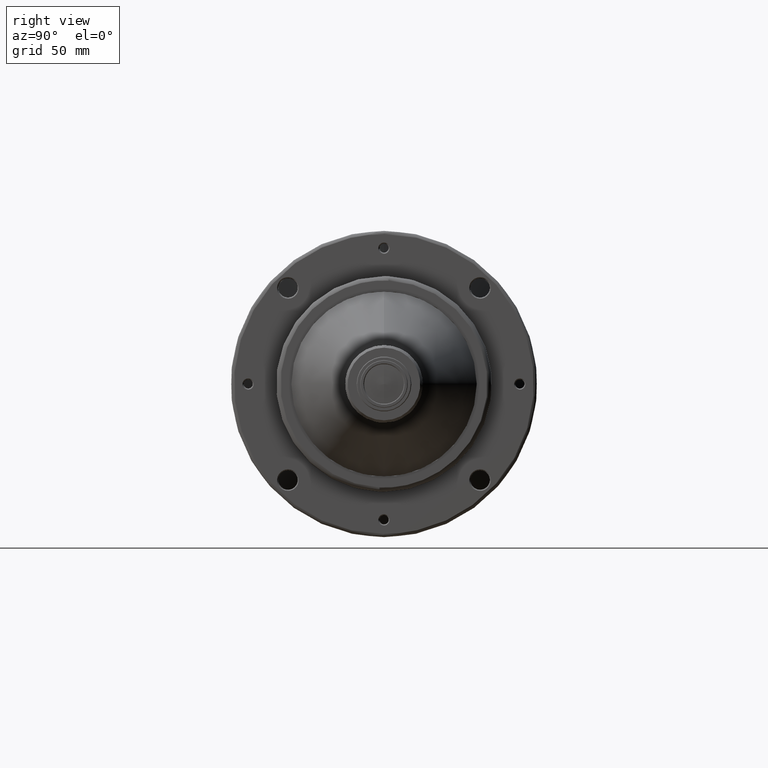
[diagram: clean part render]
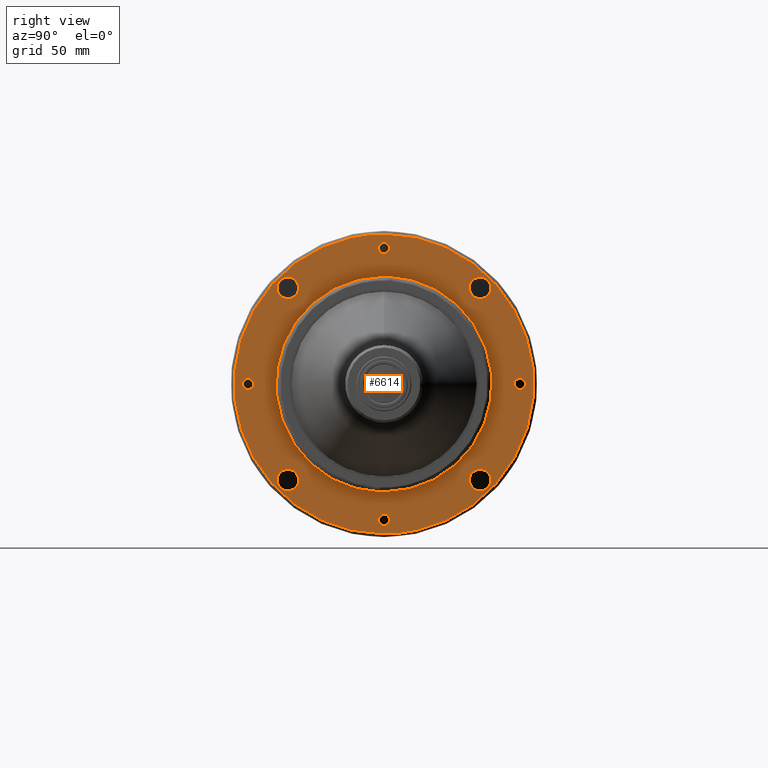
[diagram: same view with one face highlighted and labeled with its STEP entity id]
A machine part, right view. The second image highlights one B-rep face of the part: STEP entity #6614.
In plain terms, the highlighted planar face has unit normal (-1, 0, 0).
Its self-contained STEP definition (entity closure, byte-faithful):
#30 = DIRECTION ( 'NONE',  ( 1.000000000000000000, -0.0000000000000000000, -0.0000000000000000000 ) ) ;
#54 = VERTEX_POINT ( 'NONE', #2357 ) ;
#61 = CARTESIAN_POINT ( 'NONE',  ( 138.4999999999999400, 44.54772721499999500, 44.54772721499999500 ) ) ;
#107 = DIRECTION ( 'NONE',  ( 0.0000000000000000000, 0.0000000000000000000, -1.000000000000000000 ) ) ;
#110 = FACE_BOUND ( 'NONE', #6063, .T. ) ;
#121 = VERTEX_POINT ( 'NONE', #5460 ) ;
#164 = DIRECTION ( 'NONE',  ( 0.0000000000000000000, 0.0000000000000000000, 1.000000000000000000 ) ) ;
#200 = CARTESIAN_POINT ( 'NONE',  ( 138.4999999999999400, -44.54772721499999500, -49.54772721499993800 ) ) ;
#261 = ORIENTED_EDGE ( 'NONE', *, *, #2802, .F. ) ;
#349 = AXIS2_PLACEMENT_3D ( 'NONE', #6285, #6206, #6716 ) ;
#374 = CARTESIAN_POINT ( 'NONE',  ( 138.5000000000000900, 139.0000000015033700, -69.50000000125170600 ) ) ;
#379 = DIRECTION ( 'NONE',  ( 1.000000000000000000, 0.0000000000000000000, 0.0000000000000000000 ) ) ;
#387 = CARTESIAN_POINT ( 'NONE',  ( 138.5000000000000000, 0.0000000000000000000, -69.49999998730713500 ) ) ;
#450 = DIRECTION ( 'NONE',  ( 1.000000000000000000, -0.0000000000000000000, -0.0000000000000000000 ) ) ;
#464 = DIRECTION ( 'NONE',  ( 0.0000000000000000000, 0.0000000000000000000, -1.000000000000000000 ) ) ;
#506 =( BOUNDED_CURVE ( )  B_SPLINE_CURVE ( 3, ( #2512, #3502, #374, #4033 ),
 .UNSPECIFIED., .F., .F. ) 
 B_SPLINE_CURVE_WITH_KNOTS ( ( 4, 4 ),
 ( 0.0000000000000000000, 1.000000000000000000 ),
 .UNSPECIFIED. ) 
 CURVE ( )  GEOMETRIC_REPRESENTATION_ITEM ( )  RATIONAL_B_SPLINE_CURVE ( ( 0.9565783020994664800, 0.3188594340331552500, 0.3188594340331552500, 0.9565783020994664800 ) ) 
 REPRESENTATION_ITEM ( '' )  );
#519 = EDGE_CURVE ( 'NONE', #6767, #4162, #3144, .T. ) ;
#532 = EDGE_CURVE ( 'NONE', #6759, #5511, #935, .T. ) ;
#543 = PLANE ( 'NONE',  #3810 ) ;
#631 = EDGE_CURVE ( 'NONE', #821, #953, #854, .T. ) ;
#633 = CIRCLE ( 'NONE', #349, 4.999999999999942300 ) ;
#674 = CARTESIAN_POINT ( 'NONE',  ( 138.4999999999999400, -44.54772721499999500, -39.54772721500004500 ) ) ;
#711 = EDGE_CURVE ( 'NONE', #121, #5094, #4123, .T. ) ;
#753 = ORIENTED_EDGE ( 'NONE', *, *, #4030, .F. ) ;
#821 = VERTEX_POINT ( 'NONE', #2878 ) ;
#854 = CIRCLE ( 'NONE', #5788, 2.599999999999945000 ) ;
#872 = CARTESIAN_POINT ( 'NONE',  ( 138.5000000000000300, -139.0000000015033900, -69.50000000125170600 ) ) ;
#922 = ORIENTED_EDGE ( 'NONE', *, *, #1920, .F. ) ;
#935 = CIRCLE ( 'NONE', #3671, 2.599999999999935700 ) ;
#944 = EDGE_LOOP ( 'NONE', ( #3071, #3056 ) ) ;
#953 = VERTEX_POINT ( 'NONE', #1560 ) ;
#973 = VERTEX_POINT ( 'NONE', #2084 ) ;
#1014 = AXIS2_PLACEMENT_3D ( 'NONE', #5837, #6435, #3826 ) ;
#1046 = CARTESIAN_POINT ( 'NONE',  ( 138.4999999999999400, 0.0000000000000000000, -65.59999999999993700 ) ) ;
#1075 = DIRECTION ( 'NONE',  ( 1.000000000000000000, 0.0000000000000000000, 0.0000000000000000000 ) ) ;
#1105 = ORIENTED_EDGE ( 'NONE', *, *, #4434, .F. ) ;
#1155 = CIRCLE ( 'NONE', #1801, 2.599999999999945000 ) ;
#1156 = CARTESIAN_POINT ( 'NONE',  ( 138.4999999999999400, -63.00000000000000000, 0.0000000000000000000 ) ) ;
#1308 = DIRECTION ( 'NONE',  ( 1.000000000000000000, 0.0000000000000000000, 0.0000000000000000000 ) ) ;
#1351 = CARTESIAN_POINT ( 'NONE',  ( 138.4999999999999400, 44.54772721499999500, -44.54772721499999500 ) ) ;
#1359 = AXIS2_PLACEMENT_3D ( 'NONE', #5772, #3636, #464 ) ;
#1409 = CARTESIAN_POINT ( 'NONE',  ( 138.5000000000000000, 0.0000000000000000000, 69.49999998730713500 ) ) ;
#1419 = EDGE_LOOP ( 'NONE', ( #5453, #3246 ) ) ;
#1506 = CARTESIAN_POINT ( 'NONE',  ( 138.4999999999999400, 44.54772721499999500, 49.54772721499993100 ) ) ;
#1560 = CARTESIAN_POINT ( 'NONE',  ( 138.4999999999999400, -63.00000000000000000, 2.599999999999945000 ) ) ;
#1594 = AXIS2_PLACEMENT_3D ( 'NONE', #5845, #2698, #6345 ) ;
#1619 = DIRECTION ( 'NONE',  ( 1.000000000000000000, 0.0000000000000000000, 0.0000000000000000000 ) ) ;
#1653 = DIRECTION ( 'NONE',  ( 1.000000000000000000, 0.0000000000000000000, 0.0000000000000000000 ) ) ;
#1666 = DIRECTION ( 'NONE',  ( 1.000000000000000000, 0.0000000000000000000, 0.0000000000000000000 ) ) ;
#1668 = FACE_BOUND ( 'NONE', #6100, .T. ) ;
#1679 = CARTESIAN_POINT ( 'NONE',  ( 138.4999999999999400, 3.184081677783039800E-016, -60.40000000000006300 ) ) ;
#1683 = ORIENTED_EDGE ( 'NONE', *, *, #5827, .F. ) ;
#1742 = VERTEX_POINT ( 'NONE', #200 ) ;
#1750 = EDGE_LOOP ( 'NONE', ( #1683, #753 ) ) ;
#1756 = EDGE_LOOP ( 'NONE', ( #4961, #4588 ) ) ;
#1765 = CARTESIAN_POINT ( 'NONE',  ( 138.4999999999999400, 3.184081677783048200E-016, 65.59999999999993700 ) ) ;
#1801 = AXIS2_PLACEMENT_3D ( 'NONE', #6648, #379, #4037 ) ;
#1920 = EDGE_CURVE ( 'NONE', #54, #4447, #6089, .T. ) ;
#1950 = DIRECTION ( 'NONE',  ( 1.000000000000000000, 0.0000000000000000000, 0.0000000000000000000 ) ) ;
#1978 = VERTEX_POINT ( 'NONE', #4623 ) ;
#2032 = CARTESIAN_POINT ( 'NONE',  ( 138.4999999999999400, 63.00000000000000000, 0.0000000000000000000 ) ) ;
#2084 = CARTESIAN_POINT ( 'NONE',  ( 138.4999999999999400, 63.00000000000000000, 2.599999999999945000 ) ) ;
#2109 = CIRCLE ( 'NONE', #2279, 50.00000000000000000 ) ;
#2147 = CIRCLE ( 'NONE', #1014, 4.999999999999948500 ) ;
#2153 = EDGE_LOOP ( 'NONE', ( #2434, #6394 ) ) ;
#2246 = EDGE_CURVE ( 'NONE', #3697, #4452, #4668, .T. ) ;
#2272 = DIRECTION ( 'NONE',  ( 0.0000000000000000000, 0.0000000000000000000, 1.000000000000000000 ) ) ;
#2279 = AXIS2_PLACEMENT_3D ( 'NONE', #3578, #450, #4403 ) ;
#2316 = DIRECTION ( 'NONE',  ( 0.0000000000000000000, 0.0000000000000000000, -1.000000000000000000 ) ) ;
#2357 = CARTESIAN_POINT ( 'NONE',  ( 138.5000000000000000, 0.0000000000000000000, -69.49999998730713500 ) ) ;
#2368 = AXIS2_PLACEMENT_3D ( 'NONE', #4713, #30, #3725 ) ;
#2387 = FACE_OUTER_BOUND ( 'NONE', #5257, .T. ) ;
#2432 = CIRCLE ( 'NONE', #6654, 2.599999999999945000 ) ;
#2434 = ORIENTED_EDGE ( 'NONE', *, *, #631, .F. ) ;
#2465 = ORIENTED_EDGE ( 'NONE', *, *, #3556, .F. ) ;
#2474 = EDGE_LOOP ( 'NONE', ( #6090, #3008 ) ) ;
#2509 = CARTESIAN_POINT ( 'NONE',  ( 138.5000000000000300, -139.0000000015033900, 69.50000000125170600 ) ) ;
#2512 = CARTESIAN_POINT ( 'NONE',  ( 138.5000000000000000, 0.0000000000000000000, 69.49999998730713500 ) ) ;
#2582 = CARTESIAN_POINT ( 'NONE',  ( 138.5000000000000000, 0.0000000000000000000, 69.49999998730713500 ) ) ;
#2617 = CIRCLE ( 'NONE', #2925, 4.999999999999948500 ) ;
#2698 = DIRECTION ( 'NONE',  ( 1.000000000000000000, 0.0000000000000000000, 0.0000000000000000000 ) ) ;
#2732 = DIRECTION ( 'NONE',  ( 0.0000000000000000000, 0.0000000000000000000, -1.000000000000000000 ) ) ;
#2802 = EDGE_CURVE ( 'NONE', #973, #6309, #1155, .T. ) ;
#2816 = EDGE_LOOP ( 'NONE', ( #2465, #261 ) ) ;
#2828 = CARTESIAN_POINT ( 'NONE',  ( 138.4999999999999400, 0.0000000000000000000, -63.00000000000000000 ) ) ;
#2878 = CARTESIAN_POINT ( 'NONE',  ( 138.4999999999999400, -63.00000000000000000, -2.599999999999945000 ) ) ;
#2916 = DIRECTION ( 'NONE',  ( 1.000000000000000000, 0.0000000000000000000, 0.0000000000000000000 ) ) ;
#2925 = AXIS2_PLACEMENT_3D ( 'NONE', #3718, #1653, #2732 ) ;
#2995 = CARTESIAN_POINT ( 'NONE',  ( 138.4999999999999400, -44.54772721499999500, 44.54772721499999500 ) ) ;
#3008 = ORIENTED_EDGE ( 'NONE', *, *, #3787, .F. ) ;
#3014 = DIRECTION ( 'NONE',  ( 0.0000000000000000000, 0.0000000000000000000, -1.000000000000000000 ) ) ;
#3039 = FACE_BOUND ( 'NONE', #944, .T. ) ;
#3053 = CARTESIAN_POINT ( 'NONE',  ( 138.5000000000000000, 0.0000000000000000000, 50.00000000000000000 ) ) ;
#3056 = ORIENTED_EDGE ( 'NONE', *, *, #3542, .F. ) ;
#3071 = ORIENTED_EDGE ( 'NONE', *, *, #711, .F. ) ;
#3144 = CIRCLE ( 'NONE', #2368, 2.599999999999942800 ) ;
#3156 = CIRCLE ( 'NONE', #1594, 4.999999999999948500 ) ;
#3173 = ORIENTED_EDGE ( 'NONE', *, *, #3216, .F. ) ;
#3216 = EDGE_CURVE ( 'NONE', #1742, #5730, #2147, .T. ) ;
#3246 = ORIENTED_EDGE ( 'NONE', *, *, #532, .F. ) ;
#3436 = DIRECTION ( 'NONE',  ( 0.0000000000000000000, 0.0000000000000000000, -1.000000000000000000 ) ) ;
#3502 = CARTESIAN_POINT ( 'NONE',  ( 138.5000000000000900, 139.0000000015033700, 69.50000000125170600 ) ) ;
#3542 = EDGE_CURVE ( 'NONE', #5094, #121, #633, .T. ) ;
#3546 = AXIS2_PLACEMENT_3D ( 'NONE', #2828, #1308, #4969 ) ;
#3556 = EDGE_CURVE ( 'NONE', #6309, #973, #2432, .T. ) ;
#3578 = CARTESIAN_POINT ( 'NONE',  ( 138.5000000000000000, 0.0000000000000000000, 0.0000000000000000000 ) ) ;
#3636 = DIRECTION ( 'NONE',  ( 1.000000000000000000, -0.0000000000000000000, -0.0000000000000000000 ) ) ;
#3671 = AXIS2_PLACEMENT_3D ( 'NONE', #5791, #1619, #5268 ) ;
#3678 = DIRECTION ( 'NONE',  ( 0.0000000000000000000, 0.0000000000000000000, -1.000000000000000000 ) ) ;
#3679 = EDGE_CURVE ( 'NONE', #1978, #4945, #4474, .T. ) ;
#3697 = VERTEX_POINT ( 'NONE', #6269 ) ;
#3704 = DIRECTION ( 'NONE',  ( 1.000000000000000000, 0.0000000000000000000, 0.0000000000000000000 ) ) ;
#3718 = CARTESIAN_POINT ( 'NONE',  ( 138.4999999999999400, -44.54772721499999500, -44.54772721499999500 ) ) ;
#3725 = DIRECTION ( 'NONE',  ( 0.0000000000000000000, 0.0000000000000000000, -1.000000000000000000 ) ) ;
#3752 = CARTESIAN_POINT ( 'NONE',  ( 138.4999999999999400, 44.54772721499999500, 44.54772721499999500 ) ) ;
#3776 = CARTESIAN_POINT ( 'NONE',  ( 138.5000000000000000, 0.0000000000000000000, 0.0000000000000000000 ) ) ;
#3781 = FACE_BOUND ( 'NONE', #1750, .T. ) ;
#3787 = EDGE_CURVE ( 'NONE', #4945, #1978, #5457, .T. ) ;
#3810 = AXIS2_PLACEMENT_3D ( 'NONE', #4202, #4733, #164 ) ;
#3825 = CIRCLE ( 'NONE', #5561, 2.599999999999945000 ) ;
#3826 = DIRECTION ( 'NONE',  ( 0.0000000000000000000, 0.0000000000000000000, -1.000000000000000000 ) ) ;
#3889 = CIRCLE ( 'NONE', #1359, 2.599999999999942800 ) ;
#3899 = AXIS2_PLACEMENT_3D ( 'NONE', #2995, #1950, #3014 ) ;
#3927 = DIRECTION ( 'NONE',  ( 1.000000000000000000, 0.0000000000000000000, 0.0000000000000000000 ) ) ;
#3985 = AXIS2_PLACEMENT_3D ( 'NONE', #1351, #2916, #3436 ) ;
#4030 = EDGE_CURVE ( 'NONE', #4605, #4935, #6364, .T. ) ;
#4033 = CARTESIAN_POINT ( 'NONE',  ( 138.5000000000000000, 0.0000000000000000000, -69.49999998730713500 ) ) ;
#4037 = DIRECTION ( 'NONE',  ( 0.0000000000000000000, 0.0000000000000000000, -1.000000000000000000 ) ) ;
#4075 = EDGE_CURVE ( 'NONE', #5511, #6759, #5949, .T. ) ;
#4080 = EDGE_CURVE ( 'NONE', #953, #821, #3825, .T. ) ;
#4123 = CIRCLE ( 'NONE', #3899, 4.999999999999942300 ) ;
#4162 = VERTEX_POINT ( 'NONE', #5485 ) ;
#4176 = ORIENTED_EDGE ( 'NONE', *, *, #4609, .F. ) ;
#4202 = CARTESIAN_POINT ( 'NONE',  ( 138.5000000000000000, -70.33401581100000000, -70.33400000100000700 ) ) ;
#4220 = CARTESIAN_POINT ( 'NONE',  ( 138.4999999999999400, 44.54772721499999500, -49.54772721499993800 ) ) ;
#4249 = CARTESIAN_POINT ( 'NONE',  ( 138.4999999999999400, -44.54772721499999500, 49.54772721499993100 ) ) ;
#4309 = DIRECTION ( 'NONE',  ( 1.000000000000000000, 0.0000000000000000000, 0.0000000000000000000 ) ) ;
#4334 = DIRECTION ( 'NONE',  ( 0.0000000000000000000, 0.0000000000000000000, -1.000000000000000000 ) ) ;
#4403 = DIRECTION ( 'NONE',  ( 0.0000000000000000000, 0.0000000000000000000, 1.000000000000000000 ) ) ;
#4434 = EDGE_CURVE ( 'NONE', #4447, #54, #506, .T. ) ;
#4442 = FACE_BOUND ( 'NONE', #1419, .T. ) ;
#4447 = VERTEX_POINT ( 'NONE', #2582 ) ;
#4452 = VERTEX_POINT ( 'NONE', #4220 ) ;
#4474 = CIRCLE ( 'NONE', #5472, 4.999999999999942300 ) ;
#4588 = ORIENTED_EDGE ( 'NONE', *, *, #519, .F. ) ;
#4591 = FACE_BOUND ( 'NONE', #1756, .T. ) ;
#4605 = VERTEX_POINT ( 'NONE', #6274 ) ;
#4609 = EDGE_CURVE ( 'NONE', #4452, #3697, #3156, .T. ) ;
#4623 = CARTESIAN_POINT ( 'NONE',  ( 138.4999999999999400, 44.54772721499999500, 39.54772721500005200 ) ) ;
#4668 = CIRCLE ( 'NONE', #3985, 4.999999999999948500 ) ;
#4713 = CARTESIAN_POINT ( 'NONE',  ( 138.4999999999999400, 0.0000000000000000000, 63.00000000000000000 ) ) ;
#4733 = DIRECTION ( 'NONE',  ( -1.000000000000000000, 0.0000000000000000000, 0.0000000000000000000 ) ) ;
#4911 = AXIS2_PLACEMENT_3D ( 'NONE', #61, #3704, #107 ) ;
#4935 = VERTEX_POINT ( 'NONE', #3053 ) ;
#4945 = VERTEX_POINT ( 'NONE', #1506 ) ;
#4961 = ORIENTED_EDGE ( 'NONE', *, *, #5478, .F. ) ;
#4969 = DIRECTION ( 'NONE',  ( 0.0000000000000000000, 0.0000000000000000000, -1.000000000000000000 ) ) ;
#5012 = CARTESIAN_POINT ( 'NONE',  ( 138.4999999999999400, -63.00000000000000000, 0.0000000000000000000 ) ) ;
#5084 = AXIS2_PLACEMENT_3D ( 'NONE', #3776, #6419, #2272 ) ;
#5094 = VERTEX_POINT ( 'NONE', #4249 ) ;
#5168 = FACE_BOUND ( 'NONE', #2474, .T. ) ;
#5257 = EDGE_LOOP ( 'NONE', ( #922, #1105 ) ) ;
#5268 = DIRECTION ( 'NONE',  ( 0.0000000000000000000, 0.0000000000000000000, -1.000000000000000000 ) ) ;
#5342 = FACE_BOUND ( 'NONE', #2153, .T. ) ;
#5453 = ORIENTED_EDGE ( 'NONE', *, *, #4075, .F. ) ;
#5457 = CIRCLE ( 'NONE', #4911, 4.999999999999942300 ) ;
#5460 = CARTESIAN_POINT ( 'NONE',  ( 138.4999999999999400, -44.54772721499999500, 39.54772721500005200 ) ) ;
#5472 = AXIS2_PLACEMENT_3D ( 'NONE', #3752, #1666, #3678 ) ;
#5478 = EDGE_CURVE ( 'NONE', #4162, #6767, #3889, .T. ) ;
#5485 = CARTESIAN_POINT ( 'NONE',  ( 138.4999999999999400, 0.0000000000000000000, 60.40000000000005500 ) ) ;
#5511 = VERTEX_POINT ( 'NONE', #1046 ) ;
#5561 = AXIS2_PLACEMENT_3D ( 'NONE', #5012, #3927, #2316 ) ;
#5672 = ORIENTED_EDGE ( 'NONE', *, *, #2246, .F. ) ;
#5716 = DIRECTION ( 'NONE',  ( 0.0000000000000000000, 0.0000000000000000000, -1.000000000000000000 ) ) ;
#5730 = VERTEX_POINT ( 'NONE', #674 ) ;
#5772 = CARTESIAN_POINT ( 'NONE',  ( 138.4999999999999400, 0.0000000000000000000, 63.00000000000000000 ) ) ;
#5788 = AXIS2_PLACEMENT_3D ( 'NONE', #1156, #4309, #4334 ) ;
#5791 = CARTESIAN_POINT ( 'NONE',  ( 138.4999999999999400, 0.0000000000000000000, -63.00000000000000000 ) ) ;
#5827 = EDGE_CURVE ( 'NONE', #4935, #4605, #2109, .T. ) ;
#5837 = CARTESIAN_POINT ( 'NONE',  ( 138.4999999999999400, -44.54772721499999500, -44.54772721499999500 ) ) ;
#5845 = CARTESIAN_POINT ( 'NONE',  ( 138.4999999999999400, 44.54772721499999500, -44.54772721499999500 ) ) ;
#5949 = CIRCLE ( 'NONE', #3546, 2.599999999999935700 ) ;
#6010 = CARTESIAN_POINT ( 'NONE',  ( 138.4999999999999400, 63.00000000000000000, -2.599999999999945000 ) ) ;
#6063 = EDGE_LOOP ( 'NONE', ( #4176, #5672 ) ) ;
#6089 =( BOUNDED_CURVE ( )  B_SPLINE_CURVE ( 3, ( #387, #872, #2509, #1409 ),
 .UNSPECIFIED., .F., .F. ) 
 B_SPLINE_CURVE_WITH_KNOTS ( ( 4, 4 ),
 ( 0.0000000000000000000, 1.000000000000000000 ),
 .UNSPECIFIED. ) 
 CURVE ( )  GEOMETRIC_REPRESENTATION_ITEM ( )  RATIONAL_B_SPLINE_CURVE ( ( 0.9565783020994631500, 0.3188594340331535900, 0.3188594340331535900, 0.9565783020994631500 ) ) 
 REPRESENTATION_ITEM ( '' )  );
#6090 = ORIENTED_EDGE ( 'NONE', *, *, #3679, .F. ) ;
#6100 = EDGE_LOOP ( 'NONE', ( #3173, #6620 ) ) ;
#6206 = DIRECTION ( 'NONE',  ( 1.000000000000000000, 0.0000000000000000000, 0.0000000000000000000 ) ) ;
#6269 = CARTESIAN_POINT ( 'NONE',  ( 138.4999999999999400, 44.54772721499999500, -39.54772721500004500 ) ) ;
#6274 = CARTESIAN_POINT ( 'NONE',  ( 138.5000000000000000, 6.123233995736766100E-015, -50.00000000000000000 ) ) ;
#6285 = CARTESIAN_POINT ( 'NONE',  ( 138.4999999999999400, -44.54772721499999500, 44.54772721499999500 ) ) ;
#6309 = VERTEX_POINT ( 'NONE', #6010 ) ;
#6345 = DIRECTION ( 'NONE',  ( 0.0000000000000000000, 0.0000000000000000000, -1.000000000000000000 ) ) ;
#6364 = CIRCLE ( 'NONE', #5084, 50.00000000000000000 ) ;
#6394 = ORIENTED_EDGE ( 'NONE', *, *, #4080, .F. ) ;
#6419 = DIRECTION ( 'NONE',  ( 1.000000000000000000, -0.0000000000000000000, -0.0000000000000000000 ) ) ;
#6435 = DIRECTION ( 'NONE',  ( 1.000000000000000000, 0.0000000000000000000, 0.0000000000000000000 ) ) ;
#6565 = FACE_BOUND ( 'NONE', #2816, .T. ) ;
#6614 = ADVANCED_FACE ( 'NONE', ( #6565, #4591, #5342, #4442, #3039, #1668, #110, #5168, #3781, #2387 ), #543, .F. ) ;
#6620 = ORIENTED_EDGE ( 'NONE', *, *, #6709, .F. ) ;
#6648 = CARTESIAN_POINT ( 'NONE',  ( 138.4999999999999400, 63.00000000000000000, 0.0000000000000000000 ) ) ;
#6654 = AXIS2_PLACEMENT_3D ( 'NONE', #2032, #1075, #5716 ) ;
#6709 = EDGE_CURVE ( 'NONE', #5730, #1742, #2617, .T. ) ;
#6716 = DIRECTION ( 'NONE',  ( 0.0000000000000000000, 0.0000000000000000000, -1.000000000000000000 ) ) ;
#6759 = VERTEX_POINT ( 'NONE', #1679 ) ;
#6767 = VERTEX_POINT ( 'NONE', #1765 ) ;